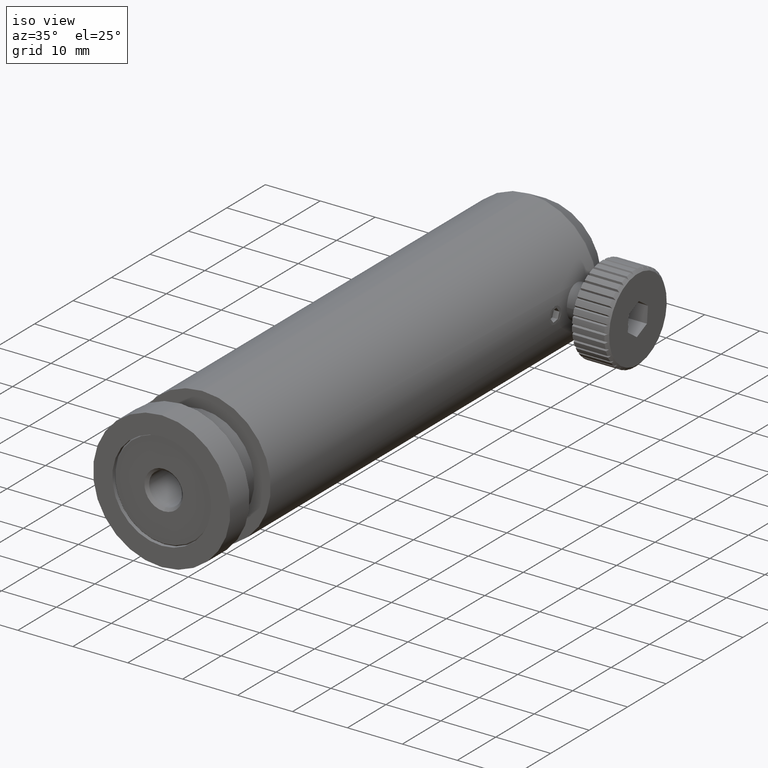
[diagram: clean part render]
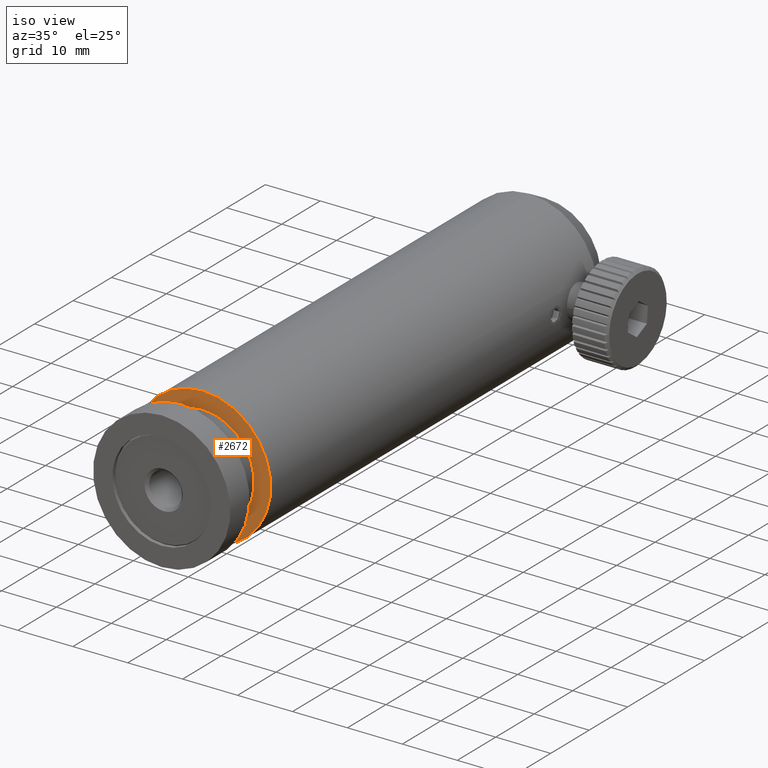
[diagram: same view with one face highlighted and labeled with its STEP entity id]
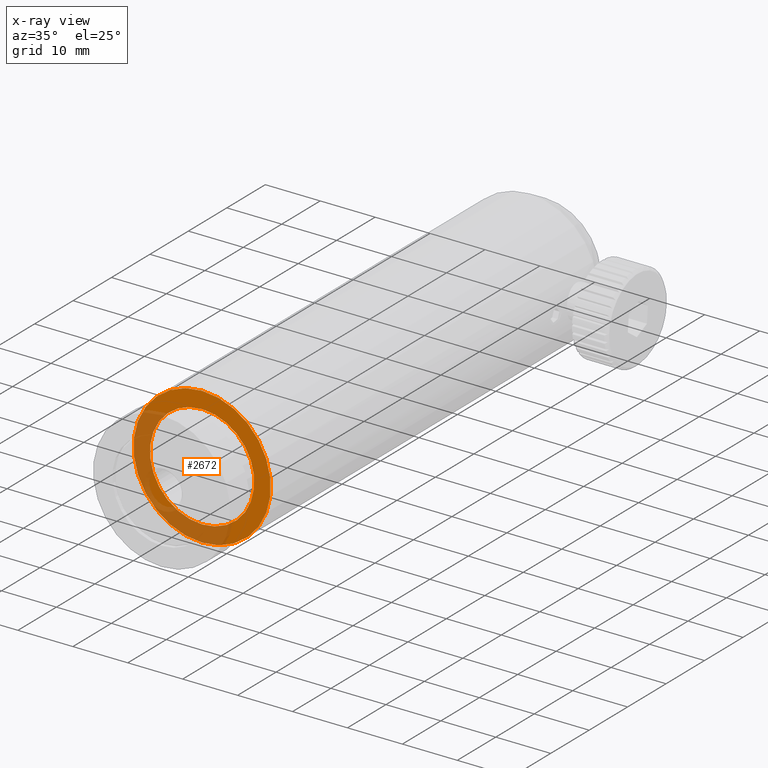
[diagram: x-ray of the same camera — body ghosted, the highlighted face saturated]
A machine part, iso view. The second image highlights one B-rep face of the part: STEP entity #2672.
The next image is the same camera in x-ray: the body ghosted, the highlighted face saturated — about 39% of this face is hidden behind the body in this view.
In plain terms, the highlighted planar face has unit normal (0, 1, 0).
Its self-contained STEP definition (entity closure, byte-faithful):
#15 = CARTESIAN_POINT ( 'NONE',  ( -3.204778668925413854, -1.813612059609843952, 1.686509214775364569E-15 ) ) ;
#386 = ORIENTED_EDGE ( 'NONE', *, *, #3264, .F. ) ;
#462 = VERTEX_POINT ( 'NONE', #3330 ) ;
#619 = CIRCLE ( 'NONE', #5791, 9.500000000000000000 ) ;
#635 = DIRECTION ( 'NONE',  ( 0.0000000000000000000, 1.000000000000000000, 0.0000000000000000000 ) ) ;
#712 = EDGE_CURVE ( 'NONE', #4649, #462, #8463, .T. ) ;
#1292 = CIRCLE ( 'NONE', #7628, 12.50000000000000000 ) ;
#1432 = CARTESIAN_POINT ( 'NONE',  ( -3.204778668925413854, -1.813612059609847504, 1.686509214775364569E-15 ) ) ;
#1564 = EDGE_LOOP ( 'NONE', ( #386, #2368 ) ) ;
#1726 = VERTEX_POINT ( 'NONE', #7124 ) ;
#1837 = VERTEX_POINT ( 'NONE', #6474 ) ;
#2019 = DIRECTION ( 'NONE',  ( 0.0000000000000000000, -0.0000000000000000000, 1.000000000000000000 ) ) ;
#2099 = AXIS2_PLACEMENT_3D ( 'NONE', #4270, #5744, #7217 ) ;
#2145 = DIRECTION ( 'NONE',  ( 0.0000000000000000000, 0.0000000000000000000, -1.000000000000000000 ) ) ;
#2345 = DIRECTION ( 'NONE',  ( 0.0000000000000000000, 1.000000000000000000, 0.0000000000000000000 ) ) ;
#2368 = ORIENTED_EDGE ( 'NONE', *, *, #7016, .F. ) ;
#2425 = DIRECTION ( 'NONE',  ( 0.0000000000000000000, 0.0000000000000000000, 1.000000000000000000 ) ) ;
#2672 = ADVANCED_FACE ( 'NONE', ( #4241, #6317 ), #7697, .F. ) ;
#3049 = AXIS2_PLACEMENT_3D ( 'NONE', #7332, #2345, #2425 ) ;
#3106 = AXIS2_PLACEMENT_3D ( 'NONE', #5585, #635, #2019 ) ;
#3264 = EDGE_CURVE ( 'NONE', #1837, #1726, #5262, .T. ) ;
#3330 = CARTESIAN_POINT ( 'NONE',  ( -3.204778668925412521, -1.813612059609843952, 9.500000000000001776 ) ) ;
#4224 = EDGE_CURVE ( 'NONE', #462, #4649, #619, .T. ) ;
#4241 = FACE_BOUND ( 'NONE', #6306, .T. ) ;
#4270 = CARTESIAN_POINT ( 'NONE',  ( -3.204778668925413854, -1.813612059609843952, 1.686509214775364569E-15 ) ) ;
#4649 = VERTEX_POINT ( 'NONE', #8573 ) ;
#5262 = CIRCLE ( 'NONE', #3049, 12.50000000000000000 ) ;
#5302 = ORIENTED_EDGE ( 'NONE', *, *, #712, .F. ) ;
#5585 = CARTESIAN_POINT ( 'NONE',  ( 6.295221331074586146, -1.813612059609843952, 1.686509214775364569E-15 ) ) ;
#5744 = DIRECTION ( 'NONE',  ( -0.0000000000000000000, -1.000000000000000000, -0.0000000000000000000 ) ) ;
#5791 = AXIS2_PLACEMENT_3D ( 'NONE', #15, #8496, #2145 ) ;
#6306 = EDGE_LOOP ( 'NONE', ( #5302, #8711 ) ) ;
#6317 = FACE_OUTER_BOUND ( 'NONE', #1564, .T. ) ;
#6364 = DIRECTION ( 'NONE',  ( 0.0000000000000000000, 1.000000000000000000, 0.0000000000000000000 ) ) ;
#6474 = CARTESIAN_POINT ( 'NONE',  ( -3.204778668925413854, -1.813612059609847504, -12.49999999999999822 ) ) ;
#7016 = EDGE_CURVE ( 'NONE', #1726, #1837, #1292, .T. ) ;
#7124 = CARTESIAN_POINT ( 'NONE',  ( -3.204778668925412077, -1.813612059609847504, 12.50000000000000178 ) ) ;
#7217 = DIRECTION ( 'NONE',  ( 0.0000000000000000000, 0.0000000000000000000, -1.000000000000000000 ) ) ;
#7332 = CARTESIAN_POINT ( 'NONE',  ( -3.204778668925413854, -1.813612059609847504, 1.686509214775364569E-15 ) ) ;
#7628 = AXIS2_PLACEMENT_3D ( 'NONE', #1432, #6364, #7749 ) ;
#7697 = PLANE ( 'NONE',  #3106 ) ;
#7749 = DIRECTION ( 'NONE',  ( 0.0000000000000000000, 0.0000000000000000000, 1.000000000000000000 ) ) ;
#8463 = CIRCLE ( 'NONE', #2099, 9.500000000000000000 ) ;
#8496 = DIRECTION ( 'NONE',  ( -0.0000000000000000000, -1.000000000000000000, -0.0000000000000000000 ) ) ;
#8573 = CARTESIAN_POINT ( 'NONE',  ( -3.204778668925413854, -1.813612059609843952, -9.499999999999998224 ) ) ;
#8711 = ORIENTED_EDGE ( 'NONE', *, *, #4224, .F. ) ;